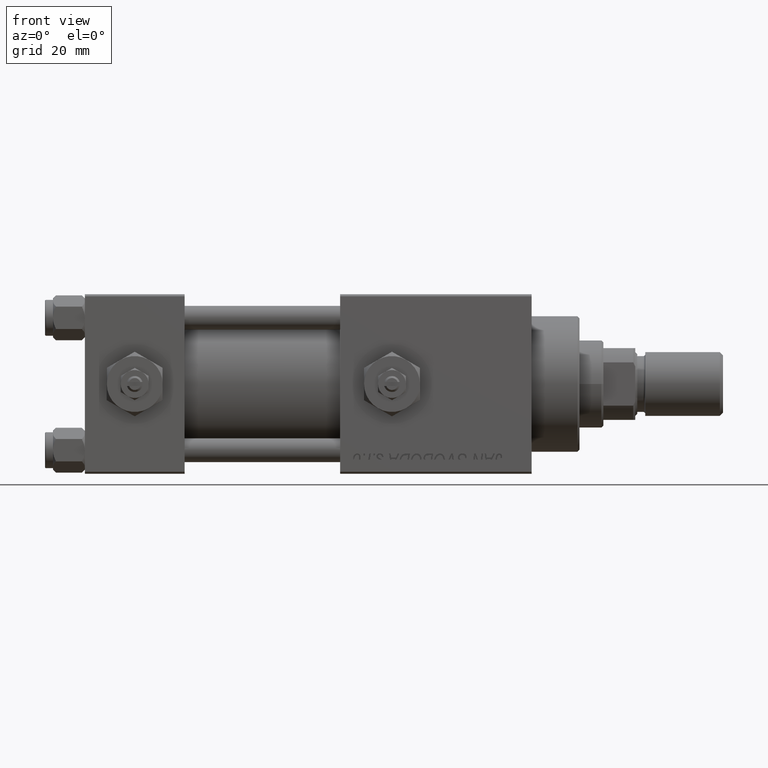
[diagram: clean part render]
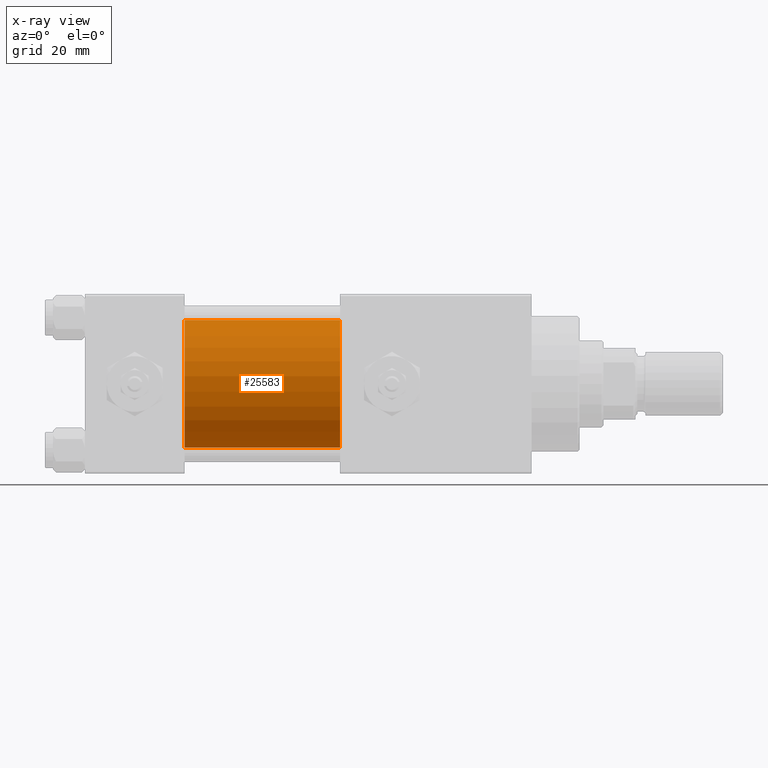
[diagram: x-ray — body ghosted, one internal face saturated and labeled with its STEP entity id]
A machine part, front view, then the same camera in x-ray: the body is ghosted and one INTERNAL B-rep face — a face not visible from any outside direction — is saturated and labeled: STEP entity #25583.
In plain terms, the highlighted cylindrical surface (partial cylindrical patch) has radius 16 mm, axis along (-1, -0, -0).
Its self-contained STEP definition (entity closure, byte-faithful):
#2131 = ORIENTED_EDGE ( 'NONE', *, *, #39229, .F. ) ;
#2922 = DIRECTION ( 'NONE',  ( 1.000000000000000000, 0.000000000000000000, 0.000000000000000000 ) ) ;
#3421 = ORIENTED_EDGE ( 'NONE', *, *, #20134, .F. ) ;
#5874 = CIRCLE ( 'NONE', #46569, 16.00000000000000000 ) ;
#6168 = EDGE_CURVE ( 'NONE', #15300, #17847, #40075, .T. ) ;
#6639 = DIRECTION ( 'NONE',  ( 0.000000000000000000, 0.000000000000000000, -1.000000000000000000 ) ) ;
#7527 = CARTESIAN_POINT ( 'NONE',  ( 64.00000000000000000, -6.426503353294456087E-16, -16.00000000000000000 ) ) ;
#7687 = FACE_OUTER_BOUND ( 'NONE', #52320, .T. ) ;
#8708 = DIRECTION ( 'NONE',  ( 1.000000000000000000, 0.000000000000000000, 0.000000000000000000 ) ) ;
#11054 = AXIS2_PLACEMENT_3D ( 'NONE', #15407, #36438, #28713 ) ;
#13132 = VECTOR ( 'NONE', #29175, 1000.000000000000000 ) ;
#13506 = EDGE_CURVE ( 'NONE', #17847, #31317, #45150, .T. ) ;
#15300 = VERTEX_POINT ( 'NONE', #15346 ) ;
#15346 = CARTESIAN_POINT ( 'NONE',  ( 64.00000000000000000, -2.602085213965210642E-15, 16.00000000000000000 ) ) ;
#15407 = CARTESIAN_POINT ( 'NONE',  ( 64.00000000000000000, -2.602085213965210642E-15, 0.000000000000000000 ) ) ;
#17847 = VERTEX_POINT ( 'NONE', #7527 ) ;
#18777 = ORIENTED_EDGE ( 'NONE', *, *, #6168, .T. ) ;
#20060 = CARTESIAN_POINT ( 'NONE',  ( 25.00000000000000000, -6.426503353294456087E-16, -16.00000000000000000 ) ) ;
#20134 = EDGE_CURVE ( 'NONE', #47790, #31317, #5874, .T. ) ;
#20182 = CARTESIAN_POINT ( 'NONE',  ( 64.00000000000000000, -2.602085213965210642E-15, 0.000000000000000000 ) ) ;
#20790 = VECTOR ( 'NONE', #42445, 1000.000000000000000 ) ;
#25583 = ADVANCED_FACE ( 'NONE', ( #7687 ), #27669, .F. ) ;
#25939 = DIRECTION ( 'NONE',  ( 0.000000000000000000, 0.000000000000000000, -1.000000000000000000 ) ) ;
#26204 = LINE ( 'NONE', #38176, #20790 ) ;
#27669 = CYLINDRICAL_SURFACE ( 'NONE', #11054, 16.00000000000000000 ) ;
#28713 = DIRECTION ( 'NONE',  ( 0.000000000000000000, 0.000000000000000000, 1.000000000000000000 ) ) ;
#29175 = DIRECTION ( 'NONE',  ( -1.000000000000000000, -0.000000000000000000, -0.000000000000000000 ) ) ;
#31317 = VERTEX_POINT ( 'NONE', #20060 ) ;
#36438 = DIRECTION ( 'NONE',  ( -1.000000000000000000, -0.000000000000000000, -0.000000000000000000 ) ) ;
#38176 = CARTESIAN_POINT ( 'NONE',  ( 64.00000000000000000, -2.602085213965210642E-15, 16.00000000000000000 ) ) ;
#39229 = EDGE_CURVE ( 'NONE', #15300, #47790, #26204, .T. ) ;
#40075 = CIRCLE ( 'NONE', #40943, 16.00000000000000000 ) ;
#40911 = CARTESIAN_POINT ( 'NONE',  ( 25.00000000000000000, -2.602085213965210642E-15, 16.00000000000000000 ) ) ;
#40943 = AXIS2_PLACEMENT_3D ( 'NONE', #20182, #8708, #25939 ) ;
#42445 = DIRECTION ( 'NONE',  ( -1.000000000000000000, -0.000000000000000000, -0.000000000000000000 ) ) ;
#45150 = LINE ( 'NONE', #48636, #13132 ) ;
#46569 = AXIS2_PLACEMENT_3D ( 'NONE', #51374, #2922, #6639 ) ;
#47790 = VERTEX_POINT ( 'NONE', #40911 ) ;
#48636 = CARTESIAN_POINT ( 'NONE',  ( 64.00000000000000000, -6.426503353294456087E-16, -16.00000000000000000 ) ) ;
#50656 = ORIENTED_EDGE ( 'NONE', *, *, #13506, .T. ) ;
#51374 = CARTESIAN_POINT ( 'NONE',  ( 25.00000000000000000, -2.602085213965210642E-15, 0.000000000000000000 ) ) ;
#52320 = EDGE_LOOP ( 'NONE', ( #18777, #50656, #3421, #2131 ) ) ;